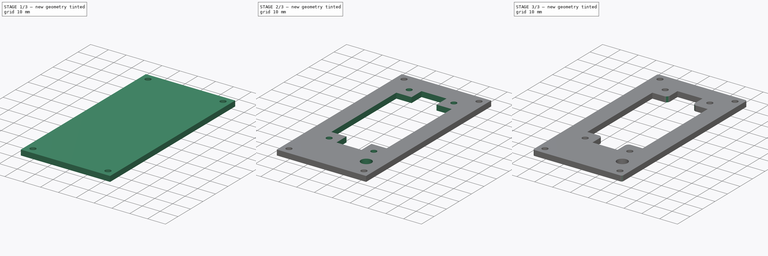
[diagram: build sequence overview — one tinted view per stage of 3, left to right]
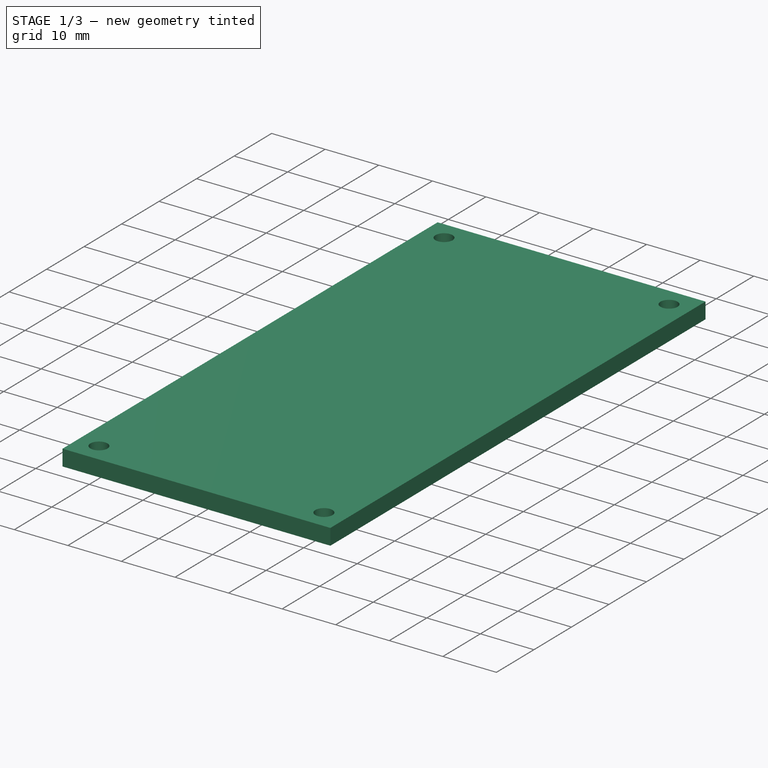
[diagram: stage 1 of 3 — iso view after this stage's code; geometry added in this stage tinted green]
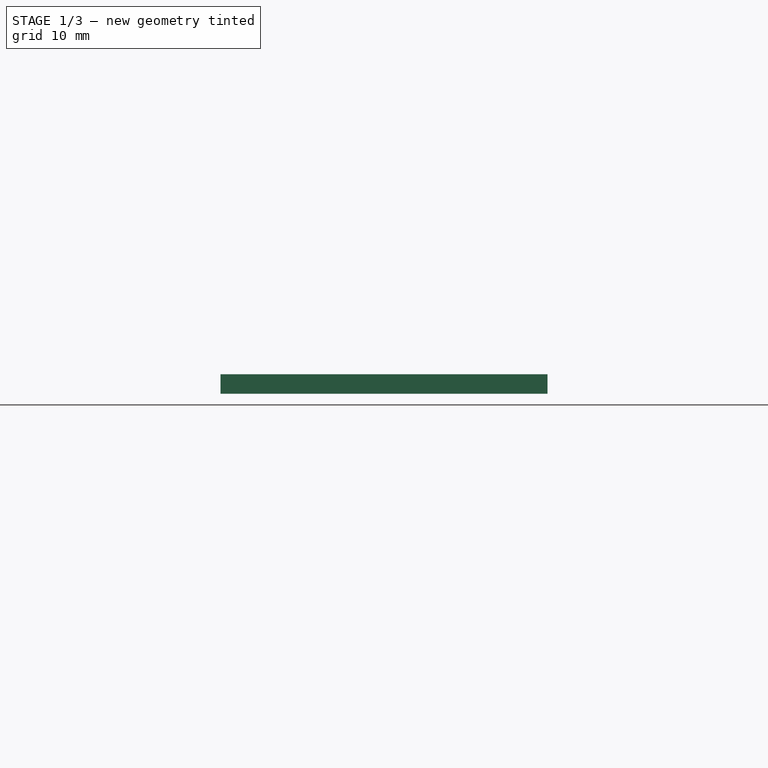
[diagram: stage 1 of 3 — front view after this stage's code; geometry added in this stage tinted green]
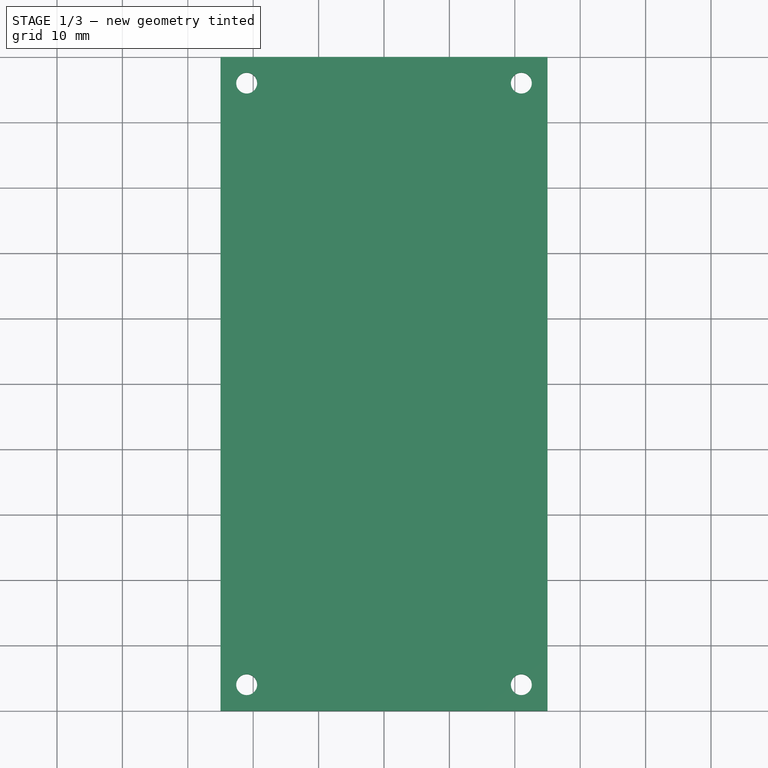
[diagram: stage 1 of 3 — top view after this stage's code; geometry added in this stage tinted green]
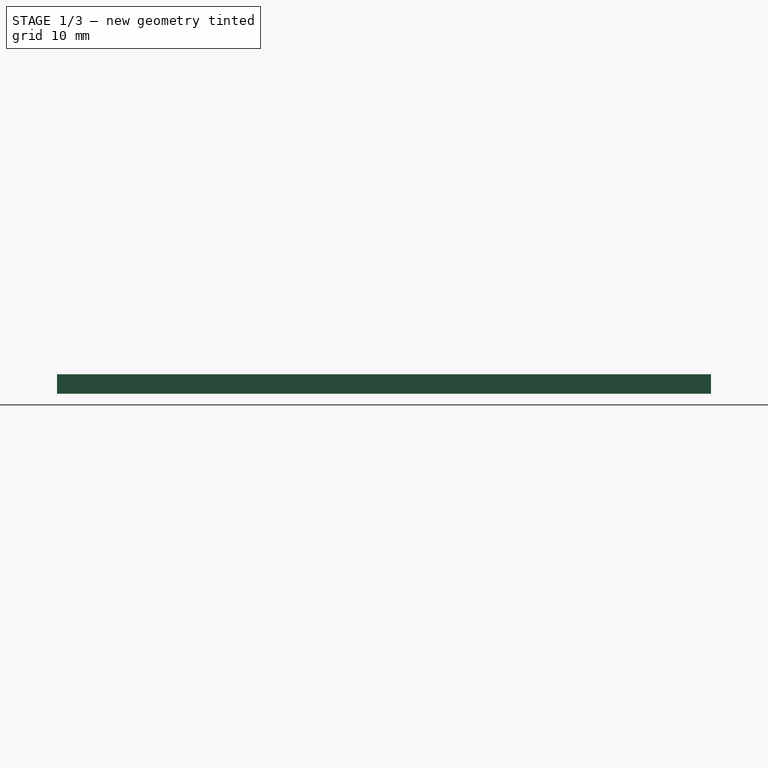
[diagram: stage 1 of 3 — right view after this stage's code; geometry added in this stage tinted green]
FCSTD DOCUMENT  (FreeCAD 0.21R33771 (Git))
Label: Speaker_Top_Housing
License: All rights reserved
LicenseURL: https://en.wikipedia.org/wiki/All_rights_reserved
objects: Sketcher::SketchObject×4, PartDesign::Pocket×3, PartDesign::Fillet×2, PartDesign::Pad×1, PartDesign::Body×1, Part::Part2DObjectPython×1
note: 18 computed .brp shape members not serialized (recipe doc carries the construction recipe); baked Part::Feature solids carry a one-line shape summary decoded from their .brp

FEATURE [Sketcher::SketchObject] Sketch
  FullyConstrained = true
  MapMode = 5
  Support = -> [XY_Plane]
  sketch-geometry (4):
    g0: LineSegment StartX=-25 StartY=50 StartZ=0 EndX=25 EndY=50 EndZ=0
    g1: LineSegment StartX=25 StartY=50 StartZ=0 EndX=25 EndY=-50 EndZ=0
    g2: LineSegment StartX=25 StartY=-50 StartZ=0 EndX=-25 EndY=-50 EndZ=0
    g3: LineSegment StartX=-25 StartY=-50 StartZ=0 EndX=-25 EndY=50 EndZ=0
  constraints (10):
    c: Coincident(g0,g1)
    c: Coincident(g1,g2)
    c: Coincident(g2,g3)
    c: Coincident(g3,g0)
    c: Horizontal(g2)
    c: Vertical(g1)
    c: DistanceY(g1,g1) = 100
    c: DistanceX(g0,g0) = 50
    c: Symmetric(g0,g2,g-1)
    c: Symmetric(g0,g0,g-2)
FEATURE [PartDesign::Pad] Pad
  Direction = (0,0,1)
  Length = 3
  Length2 = 10
  Profile = -> Sketch
  ReferenceAxis = -> Sketch [N_Axis]
  Type = 0
FEATURE [Sketcher::SketchObject] Sketch001
  ExternalGeometry = -> [Pad]
  FullyConstrained = true
  MapMode = 5
  Placement = pos=(0,0,3) rot=(0,0,1;0rad)
  Support = -> [Pad]
  sketch-geometry (4):
    g0: Circle CenterX=-21 CenterY=46 CenterZ=0 NormalX=0 NormalY=0 NormalZ=1 AngleXU=0 Radius=1.6
    g1: Circle CenterX=21 CenterY=46 CenterZ=0 NormalX=0 NormalY=0 NormalZ=1 AngleXU=0 Radius=1.6
    g2: Circle CenterX=-21 CenterY=-46 CenterZ=0 NormalX=0 NormalY=0 NormalZ=1 AngleXU=0 Radius=1.6
    g3: Circle CenterX=21 CenterY=-46 CenterZ=0 NormalX=0 NormalY=0 NormalZ=1 AngleXU=0 Radius=1.6
  constraints (9):
    c: Equal(g0,g1)
    c: Equal(g1,g3)
    c: Equal(g3,g2)
    c: Diameter(g0) = 3.2
    c: Symmetric(g0,g1,g-2)
    c: Symmetric(g2,g3,g-2)
    c: Symmetric(g2,g0,g-1)
    c: DistanceY(g0,g-4) = 4
    c: DistanceX(g-4,g0) = 4
FEATURE [PartDesign::Pocket] Pocket
  BaseFeature = -> Pad
  Direction = (0,0,-1)
  Length = 0
  Length2 = 5
  Profile = -> Sketch001
  ReferenceAxis = -> Sketch001 [N_Axis]
  Type = 3
  UpToFace = -> Pad [Face5]
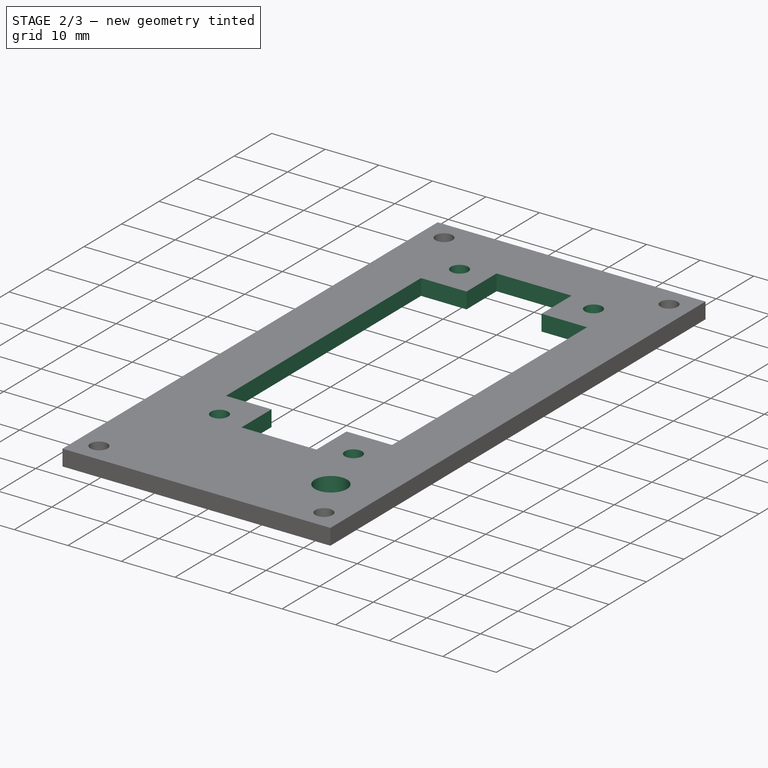
[diagram: stage 2 of 3 — iso view after this stage's code; geometry added in this stage tinted green]
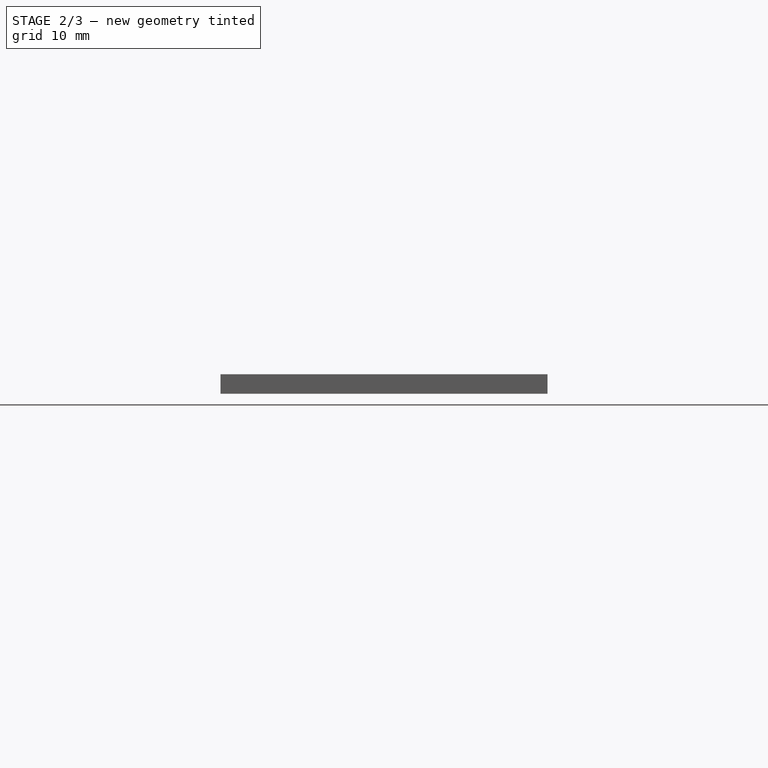
[diagram: stage 2 of 3 — front view after this stage's code; geometry added in this stage tinted green]
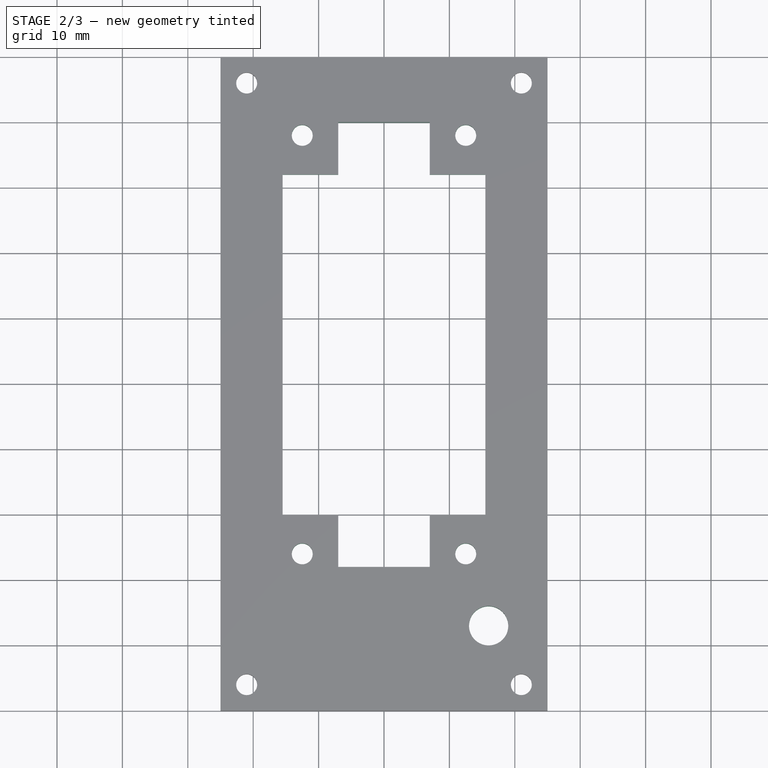
[diagram: stage 2 of 3 — top view after this stage's code; geometry added in this stage tinted green]
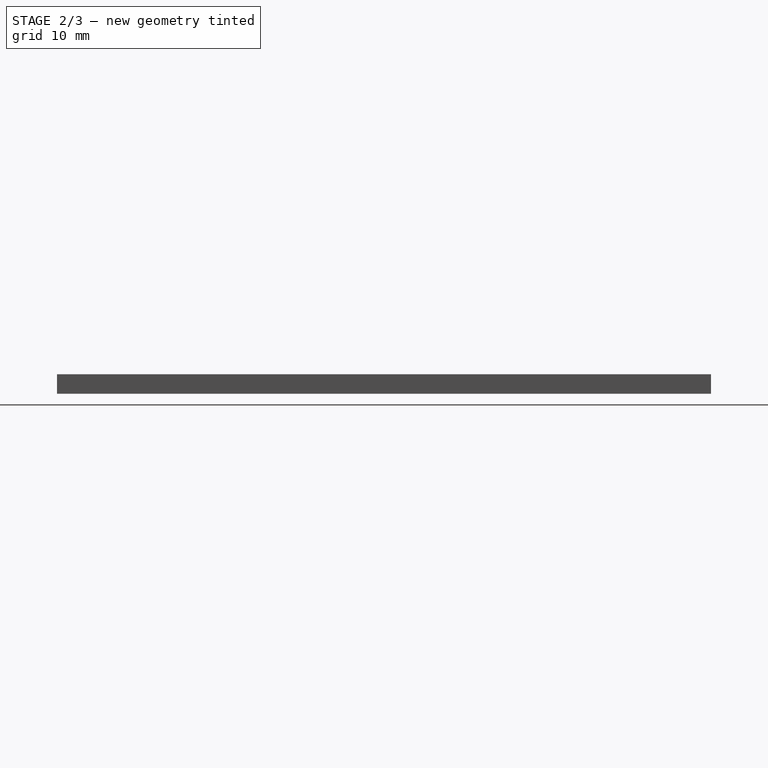
[diagram: stage 2 of 3 — right view after this stage's code; geometry added in this stage tinted green]
FEATURE [Sketcher::SketchObject] Sketch002
  ExternalGeometry = -> [Pocket]
  FullyConstrained = true
  MapMode = 5
  Placement = pos=(0,0,3) rot=(0,0,1;0rad)
  Support = -> [Pocket]
  sketch-geometry (26):
    g0: LineSegment StartX=-15.5 StartY=32 StartZ=0 EndX=-15.5 EndY=-20 EndZ=0
    g1: LineSegment StartX=-15.5 StartY=-20 StartZ=0 EndX=-7 EndY=-20 EndZ=0
    g2: LineSegment StartX=-7 StartY=-20 StartZ=0 EndX=-7 EndY=-28 EndZ=0
    g3: LineSegment StartX=-7 StartY=-28 StartZ=0 EndX=7 EndY=-28 EndZ=0
    g4: LineSegment StartX=7 StartY=-28 StartZ=0 EndX=7 EndY=-20 EndZ=0
    g5: LineSegment StartX=7 StartY=-20 StartZ=0 EndX=15.5 EndY=-20 EndZ=0
    g6: LineSegment StartX=15.5 StartY=-20 StartZ=0 EndX=15.5 EndY=32 EndZ=0
    g7: LineSegment StartX=15.5 StartY=32 StartZ=0 EndX=7 EndY=32 EndZ=0
    g8: LineSegment StartX=7 StartY=32 StartZ=0 EndX=7 EndY=40 EndZ=0
    g9: LineSegment StartX=7 StartY=40 StartZ=0 EndX=-7 EndY=40 EndZ=0
    g10: LineSegment StartX=-7 StartY=40 StartZ=0 EndX=-7 EndY=32 EndZ=0
    g11: LineSegment StartX=-7 StartY=32 StartZ=0 EndX=-15.5 EndY=32 EndZ=0
    g12: Circle CenterX=-12.5 CenterY=38 CenterZ=0 NormalX=0 NormalY=0 NormalZ=1 AngleXU=0 Radius=1.6
    g13: Circle CenterX=12.5 CenterY=38 CenterZ=0 NormalX=0 NormalY=0 NormalZ=1 AngleXU=0 Radius=1.6
    g14: Circle CenterX=-12.5 CenterY=-26 CenterZ=0 NormalX=0 NormalY=0 NormalZ=1 AngleXU=0 Radius=1.6
    g15: Circle CenterX=12.5 CenterY=-26 CenterZ=0 NormalX=0 NormalY=0 NormalZ=1 AngleXU=0 Radius=1.6
    g16: LineSegment StartX=-12.5 StartY=32 StartZ=0 EndX=-12.5 EndY=38 EndZ=0
    g17: LineSegment StartX=-12.5 StartY=38 StartZ=0 EndX=-7 EndY=38 EndZ=0
    g18: LineSegment StartX=-12.5 StartY=-20 StartZ=0 EndX=-12.5 EndY=-26 EndZ=0
    g19: LineSegment StartX=-12.5 StartY=-26 StartZ=0 EndX=-7 EndY=-26 EndZ=0
    g20: LineSegment StartX=12.5 StartY=-20 StartZ=0 EndX=12.5 EndY=-26 EndZ=0
    g21: LineSegment StartX=12.5 StartY=-26 StartZ=0 EndX=7 EndY=-26 EndZ=0
    g22: LineSegment StartX=7 StartY=38 StartZ=0 EndX=12.5 EndY=38 EndZ=0
    g23: LineSegment StartX=12.5 StartY=38 StartZ=0 EndX=12.5 EndY=32 EndZ=0
    g24: LineSegment StartX=-15.5 StartY=41 StartZ=0 EndX=-15.5 EndY=-29 EndZ=0
    g25: LineSegment StartX=-15.5 StartY=6 StartZ=0 EndX=15.5 EndY=6 EndZ=0
  constraints (74):
    c: Vertical(g0)
    c: Coincident(g1,g0)
    c: Coincident(g2,g1)
    c: Vertical(g2)
    c: Coincident(g4,g3)
    c: Coincident(g5,g4)
    c: Horizontal(g5)
    c: Coincident(g7,g6)
    c: Coincident(g10,g9)
    c: Coincident(g11,g10)
    c: Coincident(g11,g0)
    c: Coincident(g8,g9)
    c: Coincident(g8,g7)
    c: Coincident(g5,g6)
    c: Coincident(g2,g3)
    c: Horizontal(g11)
    c: Horizontal(g7)
    c: Vertical(g4)
    c: Symmetric(g9,g8,g-2)
    c: Symmetric(g2,g3,g-2)
    c: Symmetric(g5,g0,g-2)
    c: Vertical(g6)
    c: DistanceX(g9,g9) = 14
    c: DistanceY(g6,g6) = 52
    c: DistanceX(g0,g6) = 31
    c: PointOnObject(g16,g11)
    c: Coincident(g17,g16)
    c: Horizontal(g17)
    c: Vertical(g16)
    c: PointOnObject(g18,g1)
    c: Vertical(g18)
    c: Coincident(g19,g18)
    c: PointOnObject(g19,g2)
    c: Horizontal(g19)
    c: PointOnObject(g20,g5)
    c: Vertical(g20)
    c: Coincident(g21,g20)
    c: PointOnObject(g21,g4)
    c: Horizontal(g21)
    c: PointOnObject(g22,g8)
    c: Horizontal(g22)
    c: Coincident(g23,g22)
    c: PointOnObject(g23,g7)
    c: Vertical(g23)
    c: DistanceX(g0,g16) = 3
    c: DistanceY(g24,g24) = 70
    c: DistanceY(g16,g24) = 3
    c: Coincident(g12,g16)
    c: Coincident(g13,g22)
    c: Coincident(g15,g20)
    c: Coincident(g14,g18)
    c: Diameter(g13) = 3.2
    c: PointOnObject(g25,g0)
    c: PointOnObject(g25,g6)
    c: Symmetric(g0,g0,g25)
    c: Symmetric(g9,g2,g25)
    c: DistanceY(g8,g-3) = 10
    c: Vertical(g10)
    c: Equal(g17,g22)
    c: Equal(g16,g23)
    c: Equal(g13,g12)
    c: Equal(g12,g14)
    c: Equal(g14,g15)
    c: Equal(g16,g18)
    c: Symmetric(g24,g24,g25)
    c: Equal(g18,g20)
    c: Equal(g19,g21)
    c: Equal(g21,g17)
    c: PointOnObject(g24,g0)
    c: DistanceY(g8,g8) = 8
    c: Vertical(g8)
    c: Equal(g8,g10)
    c: Equal(g10,g2)
    c: PointOnObject(g17,g10)
FEATURE [PartDesign::Pocket] Pocket001
  BaseFeature = -> Pocket
  Direction = (0,0,-1)
  Length = 0
  Length2 = 5
  Profile = -> Sketch002
  ReferenceAxis = -> Sketch002 [N_Axis]
  Type = 3
  UpToFace = -> Pocket [Face4]
FEATURE [Sketcher::SketchObject] Sketch003
  ExternalGeometry = -> [Pocket001]
  FullyConstrained = true
  MapMode = 5
  Placement = pos=(0,0,3) rot=(0,0,1;0rad)
  Support = -> [Pocket001]
  sketch-geometry (1):
    g0: Circle CenterX=16 CenterY=-37 CenterZ=0 NormalX=0 NormalY=0 NormalZ=1 AngleXU=0 Radius=3
  constraints (3):
    c: Diameter(g0) = 6
    c: DistanceY(g-4,g0) = 13
    c: DistanceX(g0,g-4) = 9
FEATURE [PartDesign::Pocket] Pocket002
  BaseFeature = -> Pocket001
  Direction = (0,0,-1)
  Length = 0
  Length2 = 5
  Profile = -> Sketch003
  ReferenceAxis = -> Sketch003 [N_Axis]
  Type = 3
  UpToFace = -> Pocket001 [Face4]
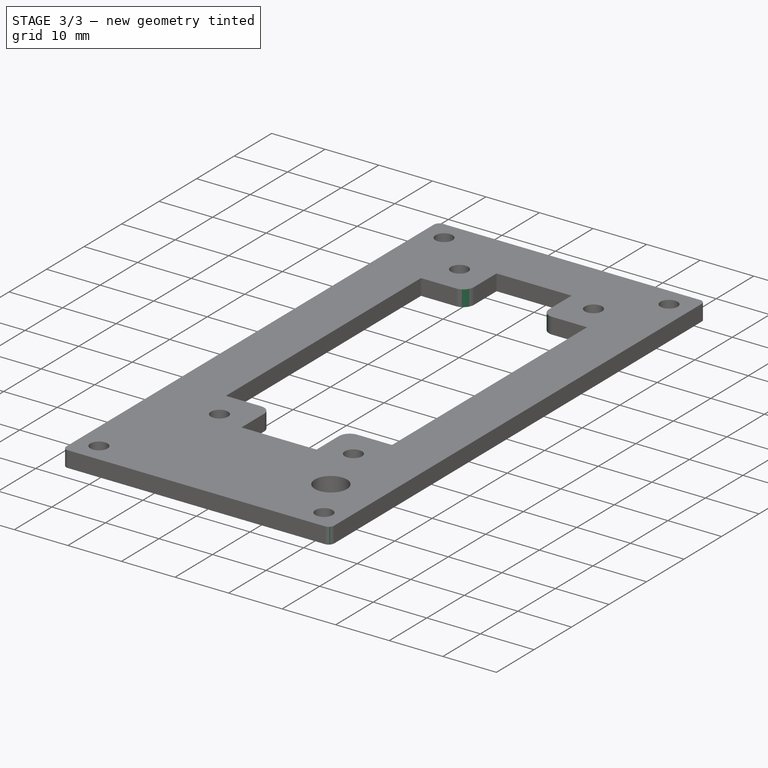
[diagram: stage 3 of 3 — iso view after this stage's code; geometry added in this stage tinted green]
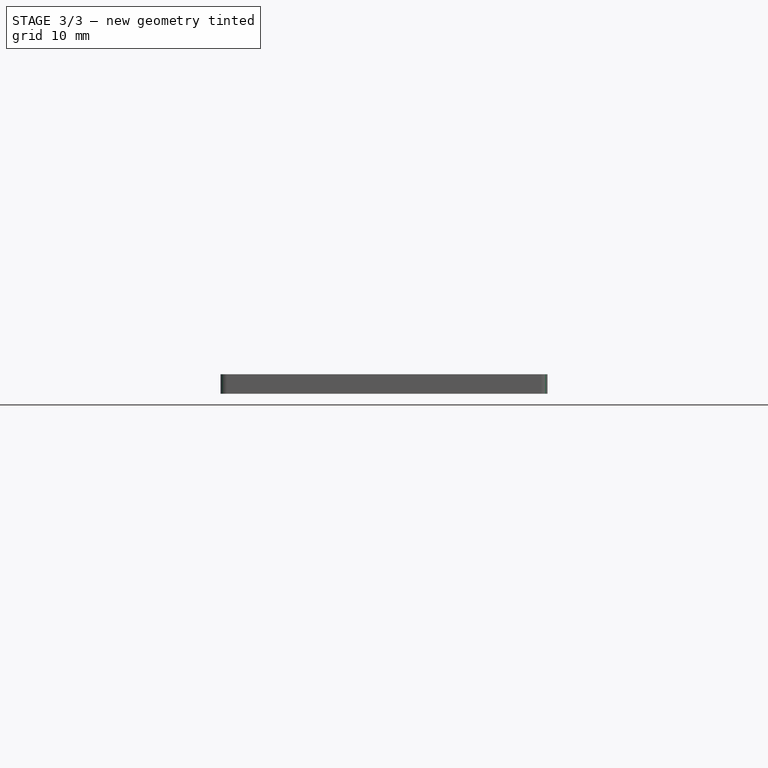
[diagram: stage 3 of 3 — front view after this stage's code; geometry added in this stage tinted green]
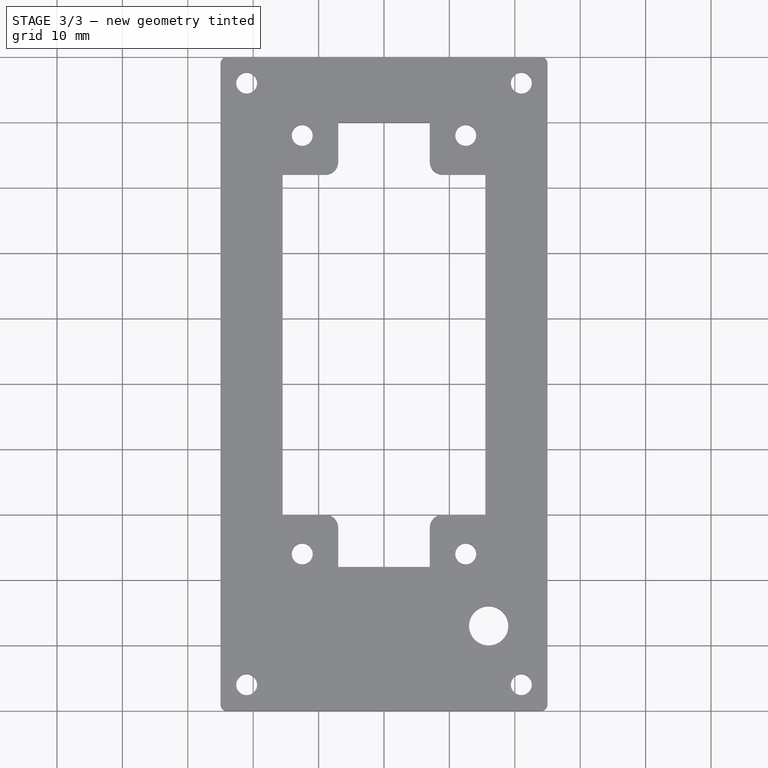
[diagram: stage 3 of 3 — top view after this stage's code; geometry added in this stage tinted green]
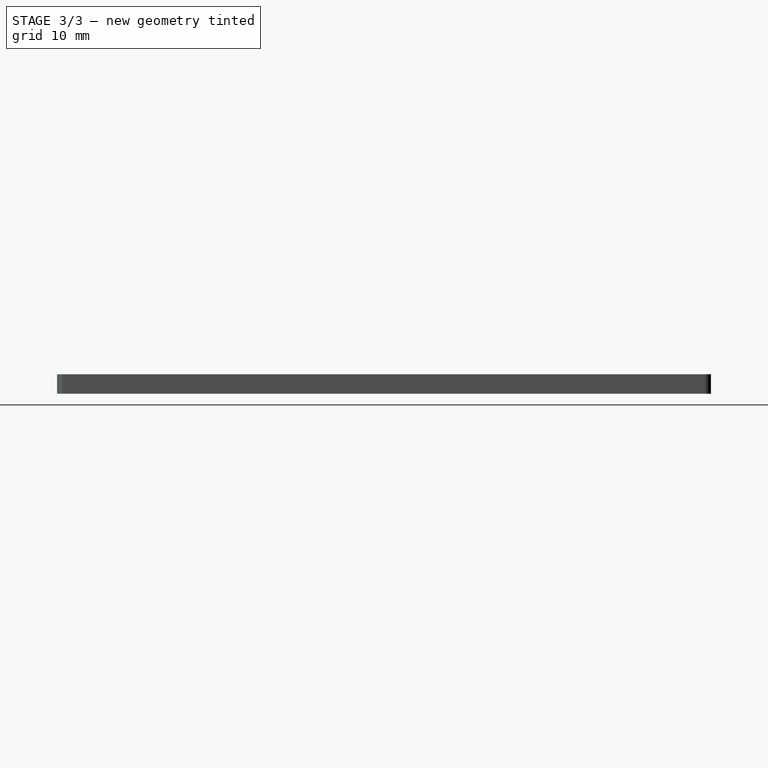
[diagram: stage 3 of 3 — right view after this stage's code; geometry added in this stage tinted green]
FEATURE [PartDesign::Fillet] Fillet
  Base = -> Pocket002 [Edge8,Edge5,Edge2,Edge1]
  BaseFeature = -> Pocket002
  Radius = 1
  SupportTransform = false
  UseAllEdges = false
FEATURE [PartDesign::Fillet] Fillet001
  Base = -> Fillet [Edge76,Edge82,Edge77,Edge83]
  BaseFeature = -> Fillet
  Radius = 2
  SupportTransform = false
  UseAllEdges = false
FEATURE [PartDesign::Body] Body
  Group = -> [Sketch,Pad,Sketch001,Pocket,Sketch002,Pocket001,Sketch003,Pocket002,Fillet,Fillet001]
  Origin = -> Origin
  Tip = -> Fillet001
FEATURE [Part::Part2DObjectPython] Shape2DView  # Draft 2D object (typed FeaturePython)
  AutoUpdate = true
  Base = -> Fillet001
  Clip = false
  FaceNumbers = [34]
  FuseArch = false
  HiddenLines = false
  InPlace = true
  OnlySolids = false
  Projection = (-2e-16,6.14264e-11,1)
  ProjectionMode = 0
  SegmentLength = 0.05
  Tessellation = false
  VisibleOnly = false
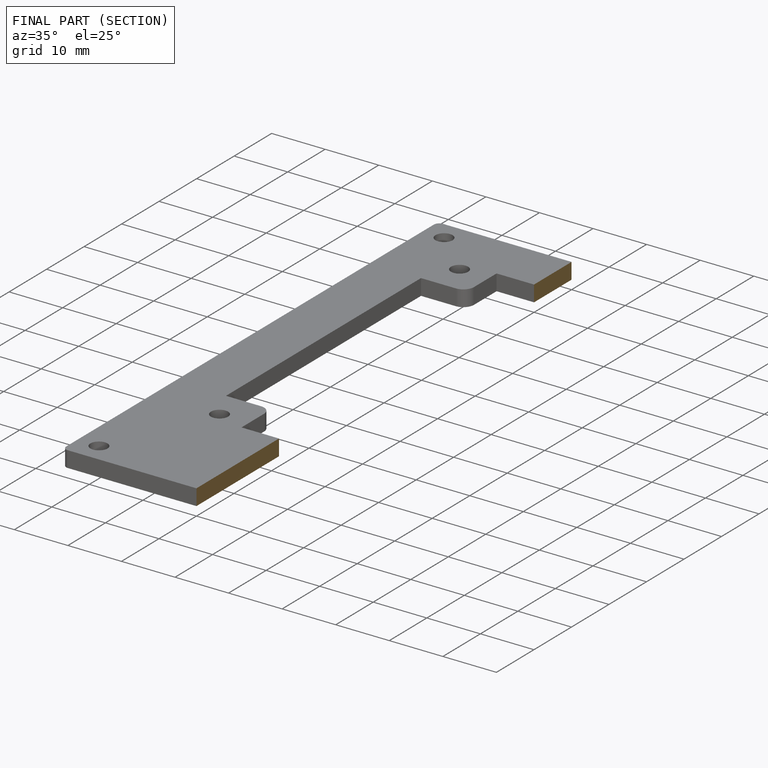
[diagram: finished part — half-section view (interior)]
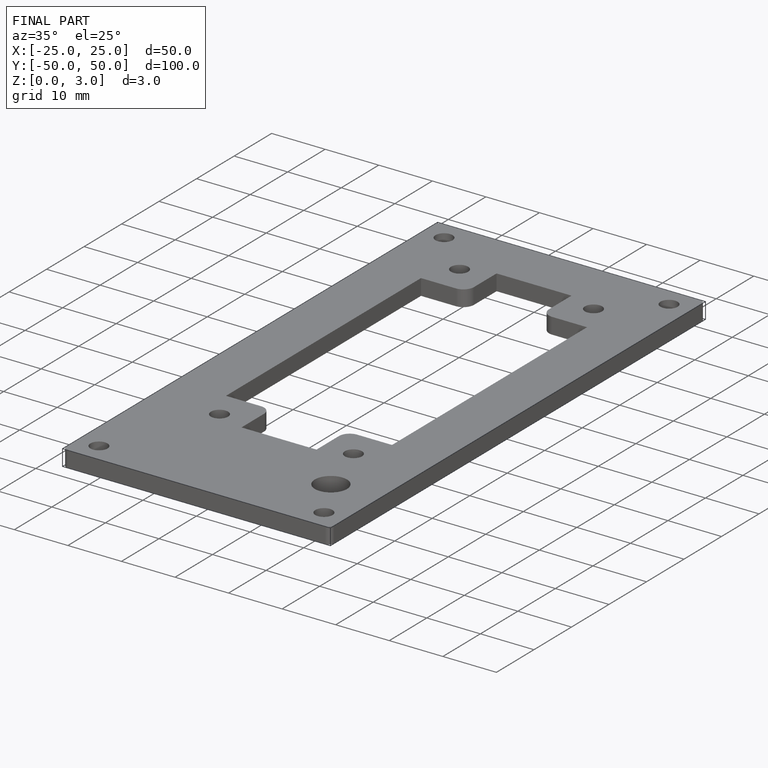
[diagram: finished part — iso view with bounding-box wireframe]
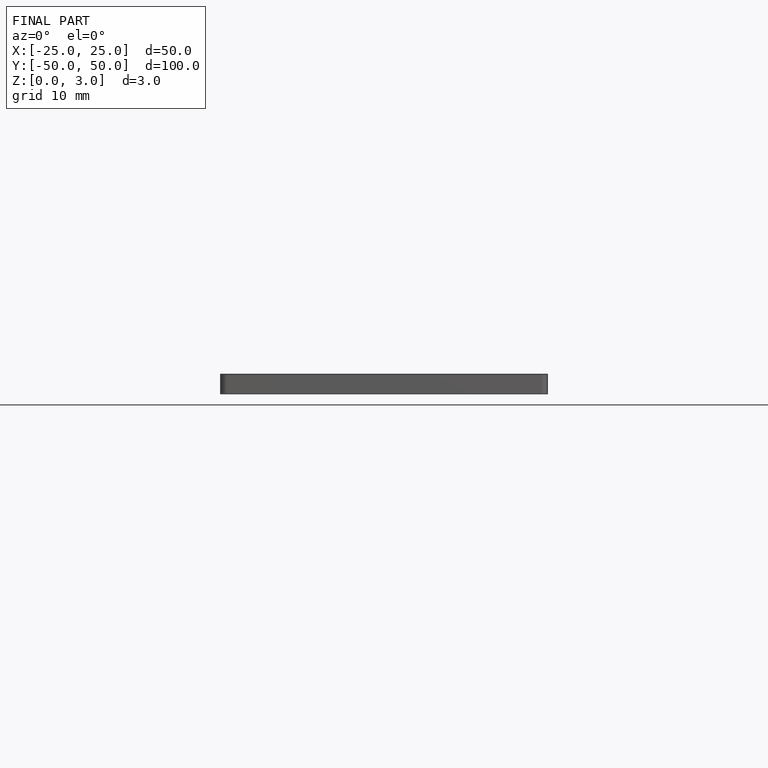
[diagram: finished part — front view with bounding-box wireframe]
